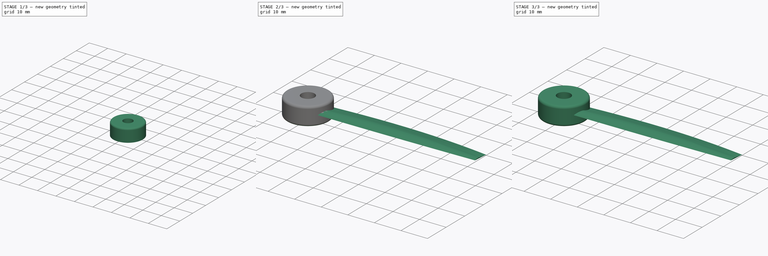
[diagram: build sequence overview — one tinted view per stage of 3, left to right]
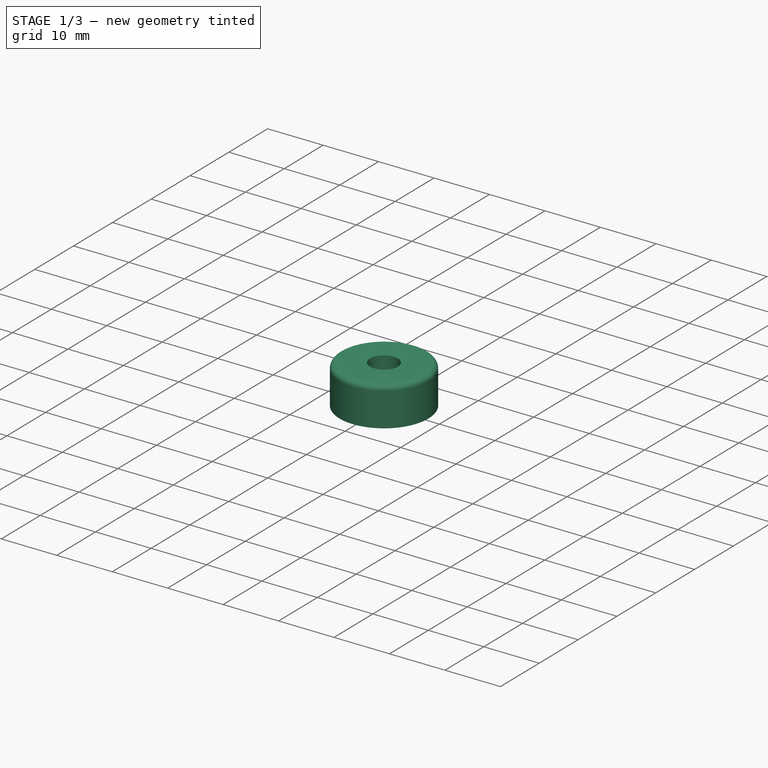
[diagram: stage 1 of 3 — iso view after this stage's code; geometry added in this stage tinted green]
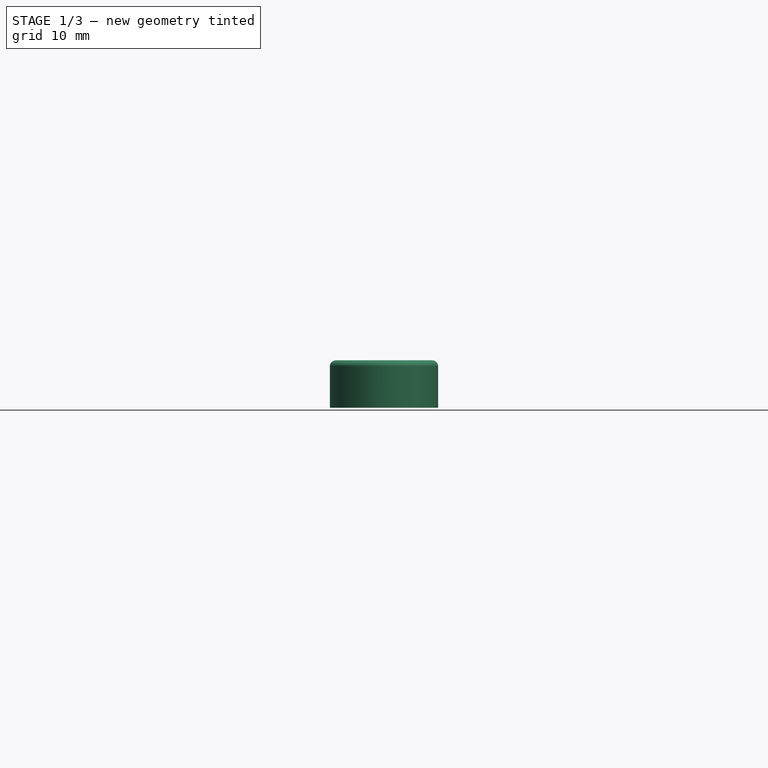
[diagram: stage 1 of 3 — front view after this stage's code; geometry added in this stage tinted green]
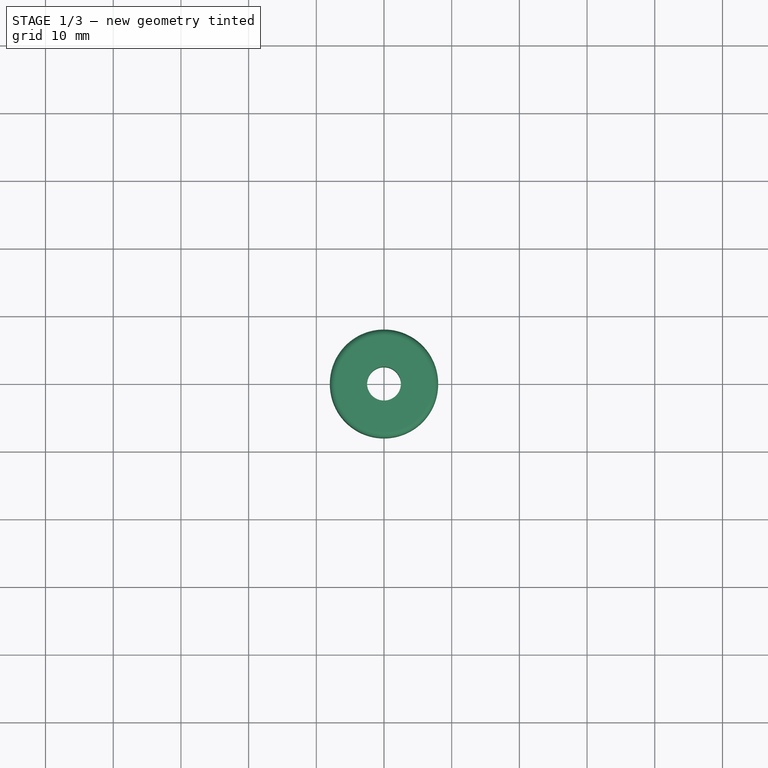
[diagram: stage 1 of 3 — top view after this stage's code; geometry added in this stage tinted green]
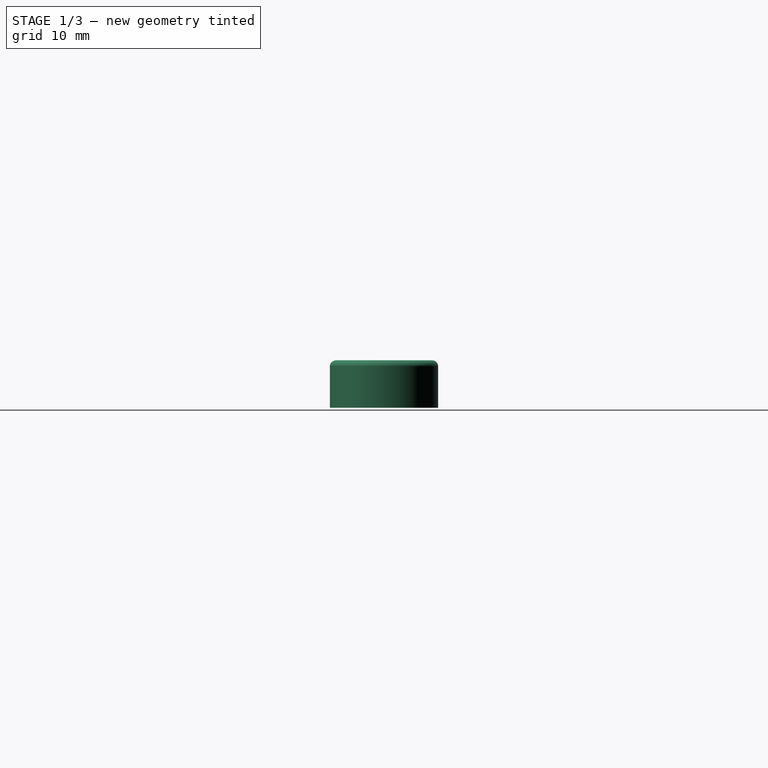
[diagram: stage 1 of 3 — right view after this stage's code; geometry added in this stage tinted green]
FCSTD DOCUMENT  (FreeCAD 0.18RUnknown)
Label: prop
License: All rights reserved
LicenseURL: http://en.wikipedia.org/wiki/All_rights_reserved
objects: Sketcher::SketchObject×5, PartDesign::Body×4, PartDesign::FeatureBase×2, PartDesign::Fillet×2, PartDesign::AdditivePipe×1, App::Part×1, PartDesign::Pad×1
note: 17 computed .brp shape members not serialized (recipe doc carries the construction recipe); baked Part::Feature solids carry a one-line shape summary decoded from their .brp

FEATURE [PartDesign::Body] Body002
  BaseFeature = -> Body
  Group = -> [Clone001]
  Origin = -> Origin003
  Placement = pos=(0,0,0) rot=(0,0,1;4.18879rad)
  Tip = -> Clone001
FEATURE [App::Part] Part
  Group = -> [Body,Body001,Body002]
  Origin = -> Origin
FEATURE [Sketcher::SketchObject] Sketch004
  MapMode = 5
  Support = -> [XY_Plane004]
  sketch-geometry (2):
    g0: Circle CenterX=0 CenterY=0 CenterZ=0 NormalX=0 NormalY=0 NormalZ=1 AngleXU=0 Radius=8
    g1: Circle CenterX=0 CenterY=0 CenterZ=0 NormalX=0 NormalY=0 NormalZ=1 AngleXU=0 Radius=2.5
  constraints (4):
    c: Coincident(g0,g-1)
    c: Radius(g0) = 8
    c: Coincident(g1,g0)
    c: Radius(g1) = 2.5
FEATURE [PartDesign::Pad] Pad
  Length = 7
  Length2 = 100
  Midplane = true
  Profile = -> Sketch004
  Type = 0
FEATURE [PartDesign::Fillet] Fillet
  Base = -> Pad [Edge3]
  BaseFeature = -> Pad
  Radius = 0.9
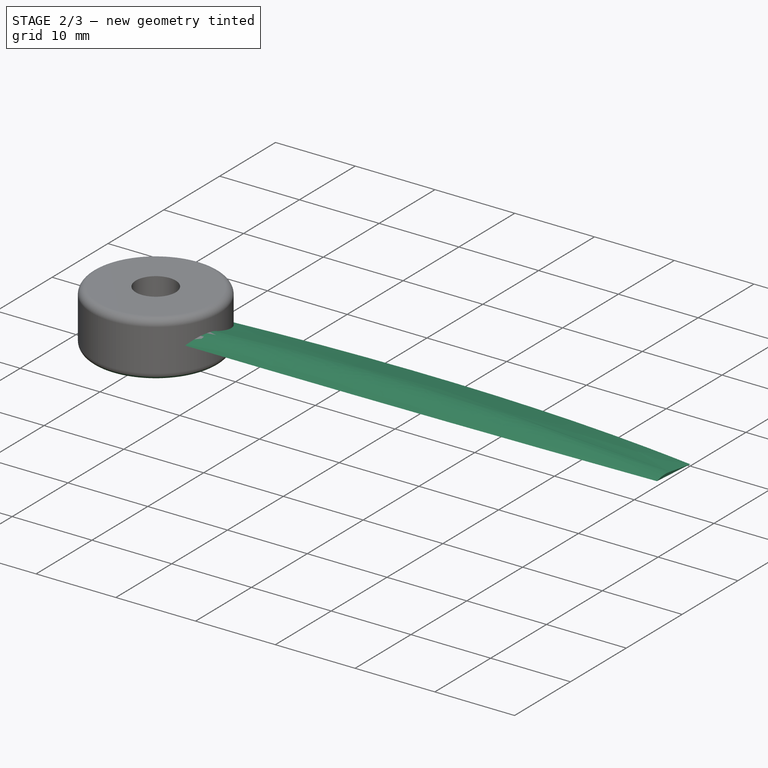
[diagram: stage 2 of 3 — iso view after this stage's code; geometry added in this stage tinted green]
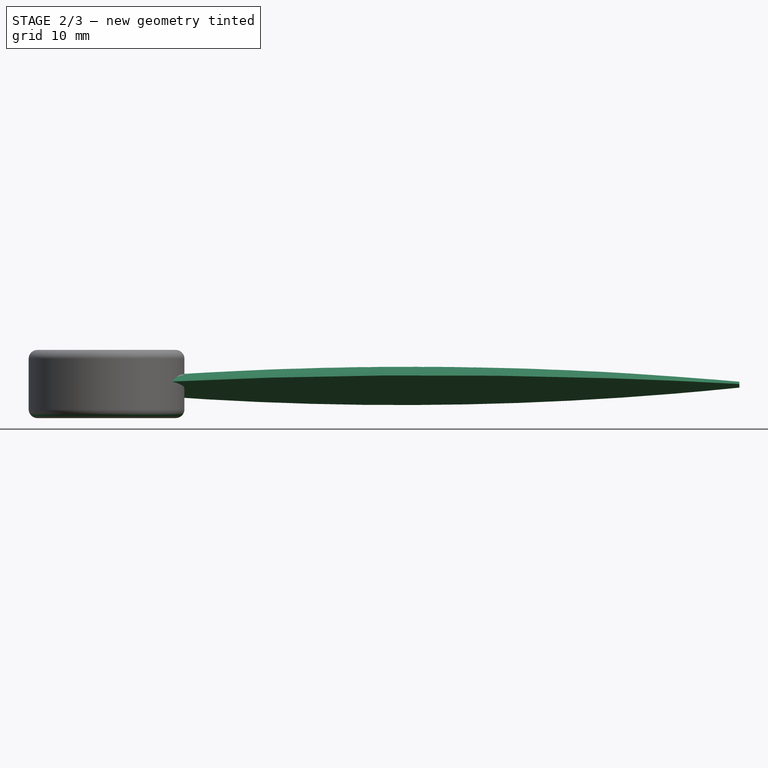
[diagram: stage 2 of 3 — front view after this stage's code; geometry added in this stage tinted green]
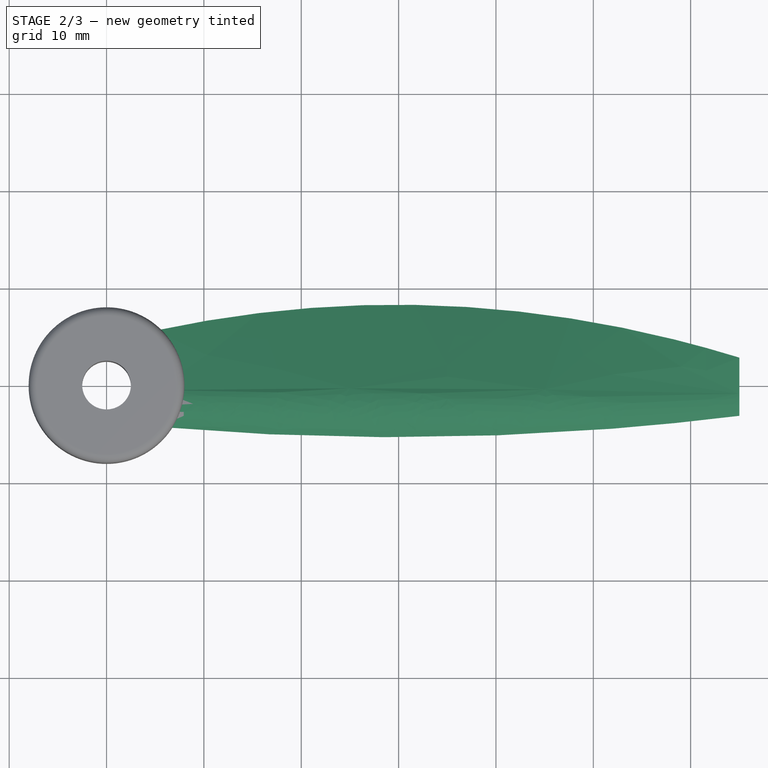
[diagram: stage 2 of 3 — top view after this stage's code; geometry added in this stage tinted green]
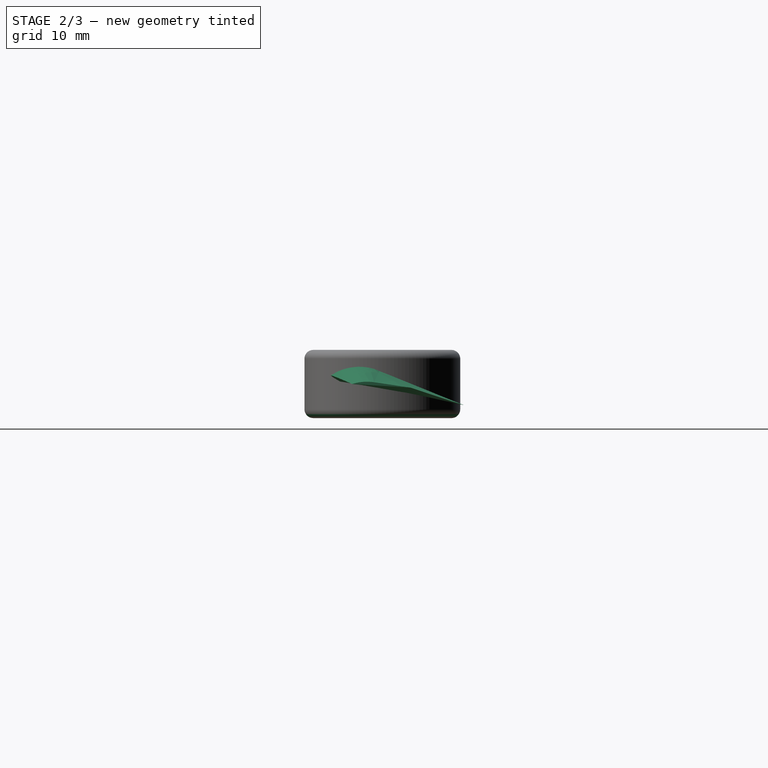
[diagram: stage 2 of 3 — right view after this stage's code; geometry added in this stage tinted green]
FEATURE [Sketcher::SketchObject] Sketch  label="end"
  AttachmentOffset = pos=(0,0,5) rot=(0,0,1;0rad)
  MapMode = 5
  Placement = pos=(5,-1.1e-15,1.1e-15) rot=(0.57735,0.57735,0.57735;2.0944rad)
  Support = -> [YZ_Plane001]
  sketch-geometry (3):
    g0: LineSegment StartX=-4.22306 StartY=0.185287 StartZ=0 EndX=5.67751 EndY=-1.22143 EndZ=0
    g1: ArcOfCircle CenterX=-1.82782 CenterY=-3.84548 CenterZ=0 NormalX=0 NormalY=0 NormalZ=1 AngleXU=0 Radius=4.68874 StartAngle=1.27643 EndAngle=2.10697
    g2: LineSegment StartX=-0.46746 StartY=0.641573 StartZ=0 EndX=5.67751 EndY=-1.22143 EndZ=0
  constraints (4):
    c: Distance(g0) = 10
    c: Coincident(g1,g0)
    c: Coincident(g2,g0)
    c: Tangent(g2,g1) = 1.5708
FEATURE [Sketcher::SketchObject] Sketch001  label="profile"
  MapMode = 5
  Placement = pos=(0,0,0) rot=(1,0,0;1.5708rad)
  Support = -> [XZ_Plane001]
  sketch-geometry (1):
    g0: LineSegment StartX=5 StartY=0 StartZ=0 EndX=65 EndY=0 EndZ=0
  constraints (4):
    c: Horizontal(g0)
    c: DistanceX(g0,g0) = 60
    c: PointOnObject(g0,g-1)
    c: DistanceX(g-1,g0) = 5
FEATURE [Sketcher::SketchObject] Sketch002  label="mid"
  AttachmentOffset = pos=(0,0,30) rot=(0,0,1;0rad)
  MapMode = 5
  Placement = pos=(30,-6.7e-15,6.7e-15) rot=(0.57735,0.57735,0.57735;2.0944rad)
  Support = -> [YZ_Plane001]
  sketch-geometry (3):
    g0: LineSegment StartX=-5.31209 StartY=0.884992 StartZ=0 EndX=8.35242 EndY=-2.1615 EndZ=0
    g1: ArcOfCircle CenterX=-2.34466 CenterY=-3.66853 CenterZ=0 NormalX=0 NormalY=0 NormalZ=1 AngleXU=0 Radius=5.4351 StartAngle=1.18355 EndAngle=2.14835
    g2: LineSegment StartX=-0.292143 StartY=1.36411 StartZ=0 EndX=8.35242 EndY=-2.1615 EndZ=0
  constraints (4):
    c: Distance(g0) = 14
    c: Coincident(g1,g0)
    c: Coincident(g2,g0)
    c: Tangent(g2,g1) = 1.5708
FEATURE [Sketcher::SketchObject] Sketch003  label="fst"
  AttachmentOffset = pos=(0,0,65) rot=(0,0,1;0rad)
  MapMode = 5
  Placement = pos=(65,-1.44e-14,1.44e-14) rot=(0.57735,0.57735,0.57735;2.0944rad)
  Support = -> [YZ_Plane001]
  sketch-geometry (3):
    g0: LineSegment StartX=-3.09968 StartY=-0.000121678 StartZ=0 EndX=2.88888 EndY=-0.370462 EndZ=0
    g1: ArcOfCircle CenterX=-1.57525 CenterY=-4.79206 CenterZ=0 NormalX=0 NormalY=0 NormalZ=1 AngleXU=0 Radius=5.02858 StartAngle=1.42359 EndAngle=1.8788
    g2: LineSegment StartX=-0.837659 StartY=0.182124 StartZ=0 EndX=2.88888 EndY=-0.370462 EndZ=0
  constraints (4):
    c: Distance(g0) = 6
    c: Coincident(g1,g0)
    c: Coincident(g2,g0)
    c: Tangent(g2,g1) = 1.5708
FEATURE [PartDesign::AdditivePipe] AdditivePipe
  AuxilleryCurvelinear = true
  AuxillerySpineTangent = false
  Binormal = (0,0,0)
  Mode = 0
  Placement = pos=(0,0,0) rot=(0.57735,0.57735,0.57735;2.0944rad)
  Profile = -> Sketch
  Sections = -> [Sketch002,Sketch003]
  Spine = -> Sketch001
  SpineTangent = false
  Transformation = 1
  Transition = 0
FEATURE [PartDesign::Fillet] Fillet001
  Base = -> Fillet [Edge3]
  BaseFeature = -> Fillet
  Radius = 0.9
FEATURE [PartDesign::Body] Body003  label="mid001"
  Group = -> [Sketch004,Pad,Fillet,Fillet001]
  Origin = -> Origin004
  Tip = -> Fillet001
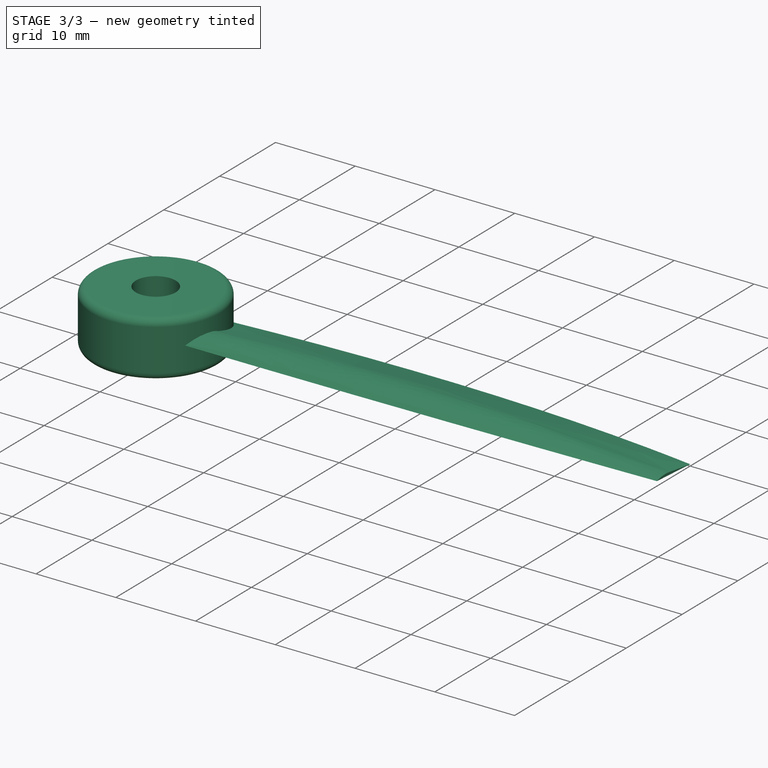
[diagram: stage 3 of 3 — iso view after this stage's code; geometry added in this stage tinted green]
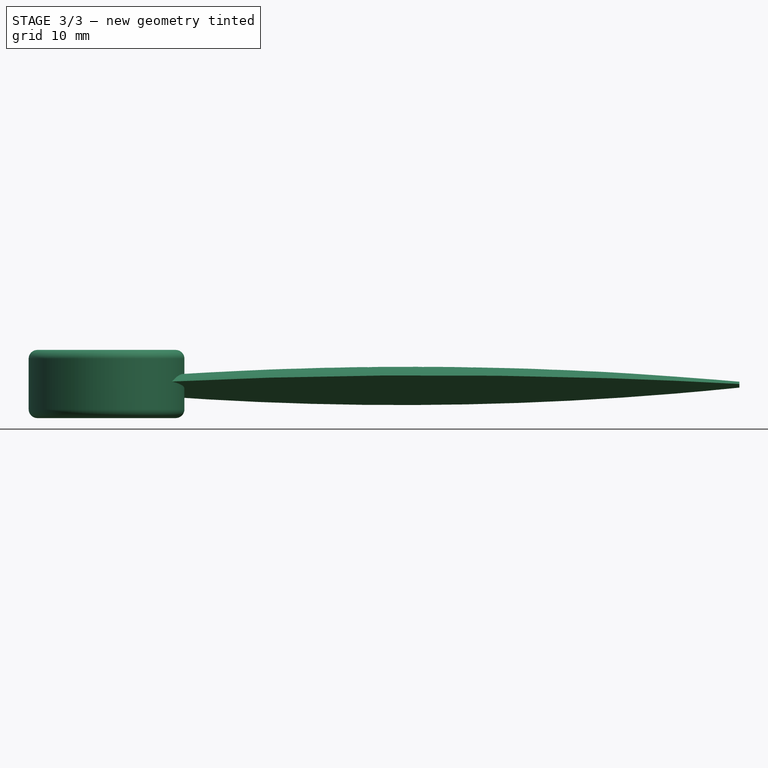
[diagram: stage 3 of 3 — front view after this stage's code; geometry added in this stage tinted green]
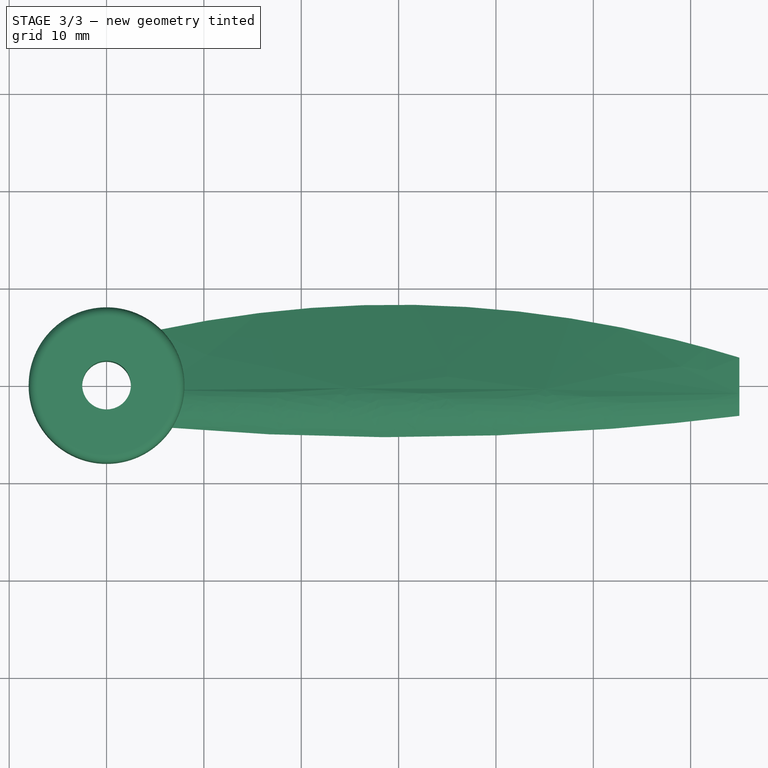
[diagram: stage 3 of 3 — top view after this stage's code; geometry added in this stage tinted green]
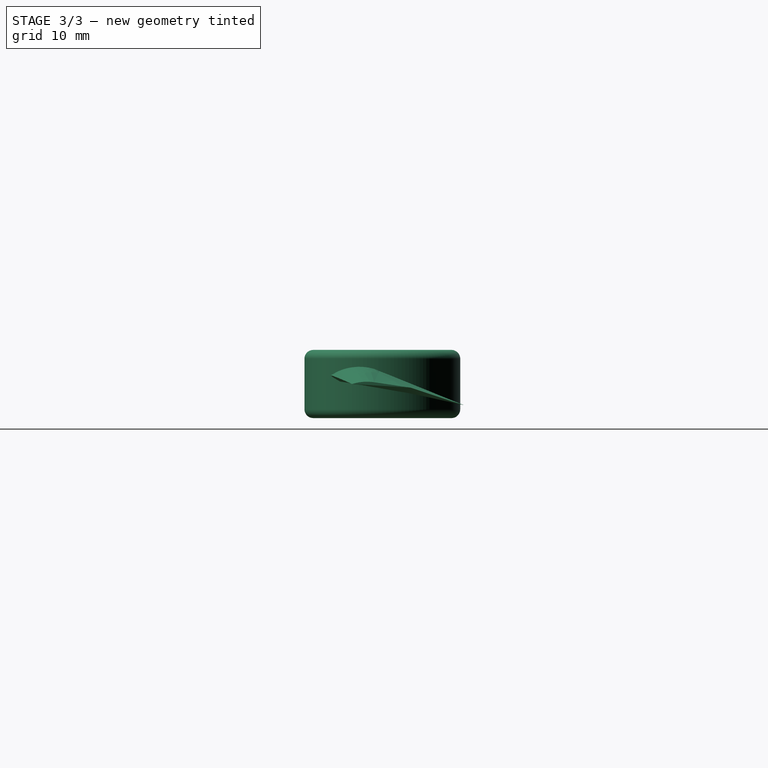
[diagram: stage 3 of 3 — right view after this stage's code; geometry added in this stage tinted green]
FEATURE [PartDesign::Body] Body  label="leaf"
  Group = -> [Sketch,Sketch001,Sketch002,Sketch003,AdditivePipe]
  Origin = -> Origin001
  Tip = -> AdditivePipe
FEATURE [PartDesign::FeatureBase] Clone
  BaseFeature = -> Body
FEATURE [PartDesign::Body] Body001
  BaseFeature = -> Body
  Group = -> [Clone]
  Origin = -> Origin002
  Placement = pos=(0,0,0) rot=(0,0,1;2.0944rad)
  Tip = -> Clone
FEATURE [PartDesign::FeatureBase] Clone001
  BaseFeature = -> Body
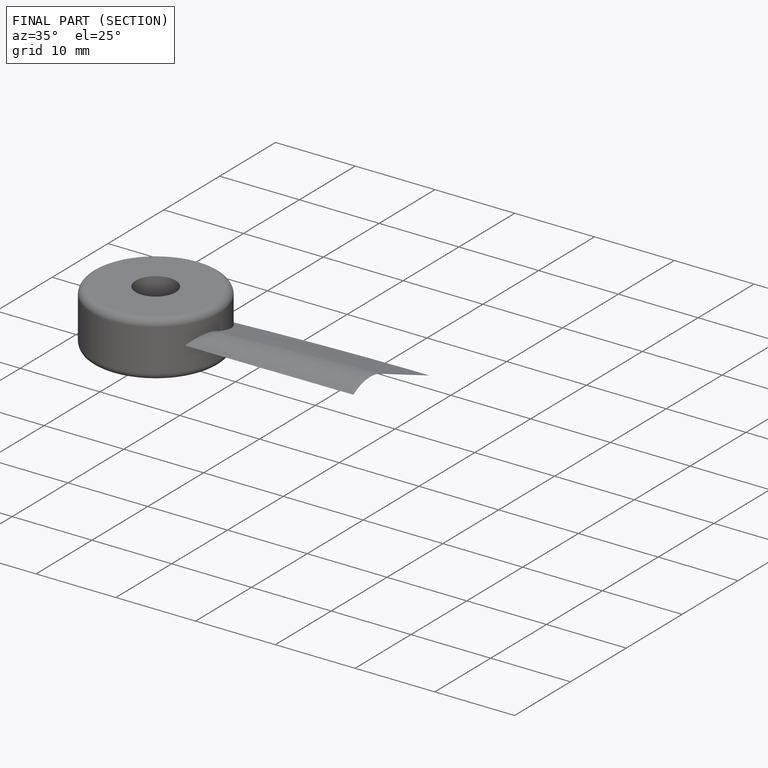
[diagram: finished part — half-section view (interior)]
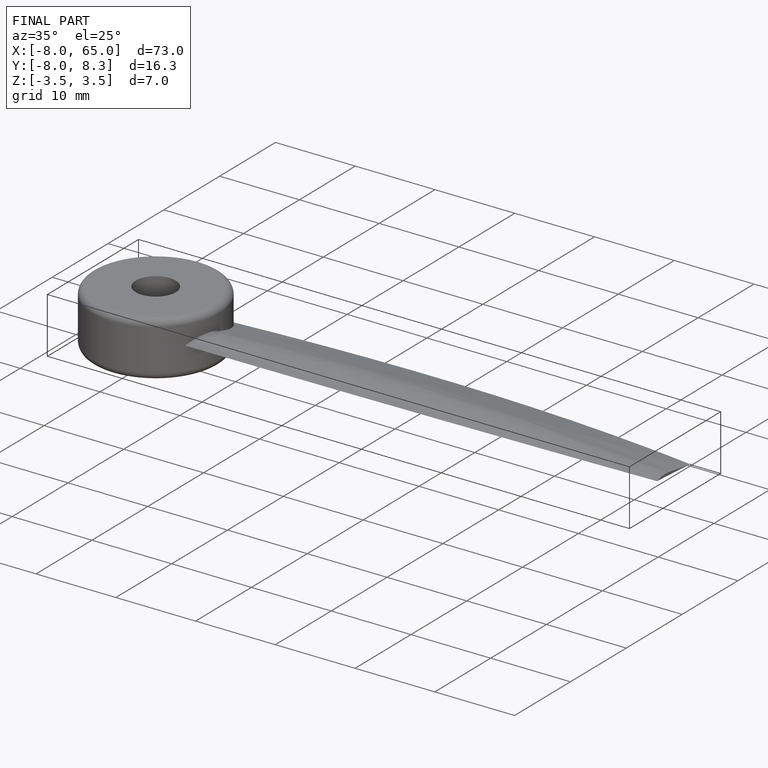
[diagram: finished part — iso view with bounding-box wireframe]
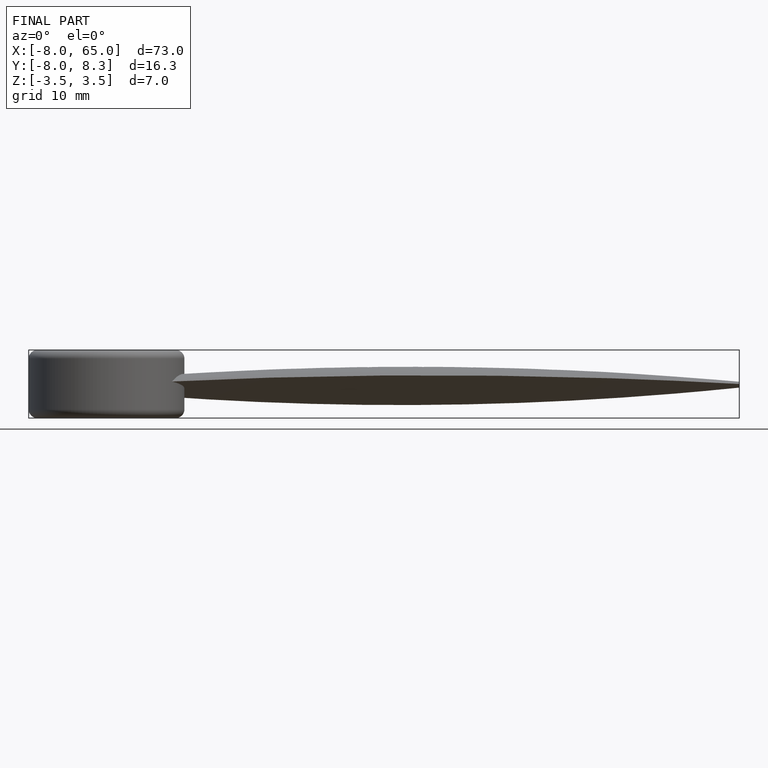
[diagram: finished part — front view with bounding-box wireframe]
